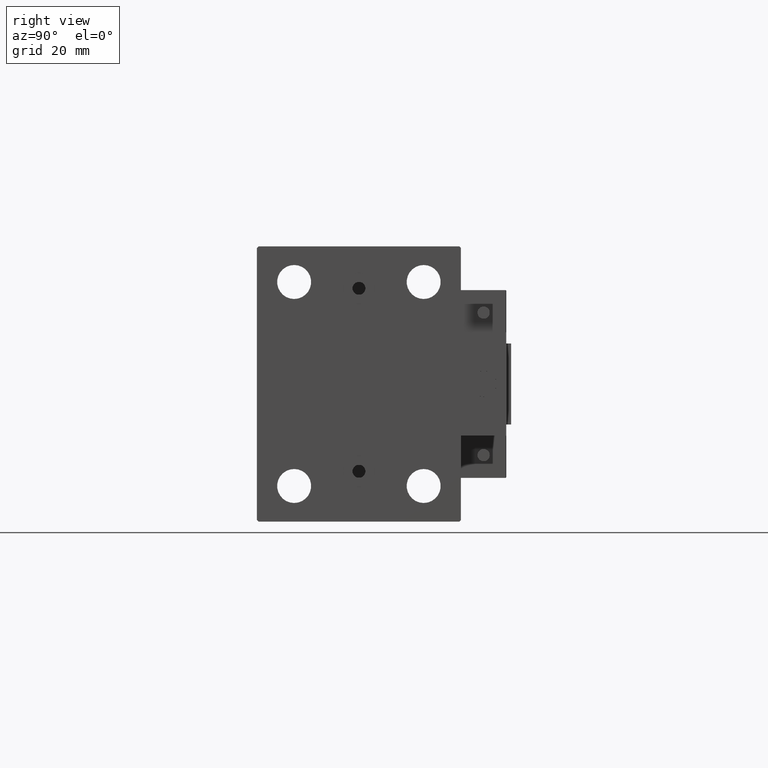
[diagram: clean part render]
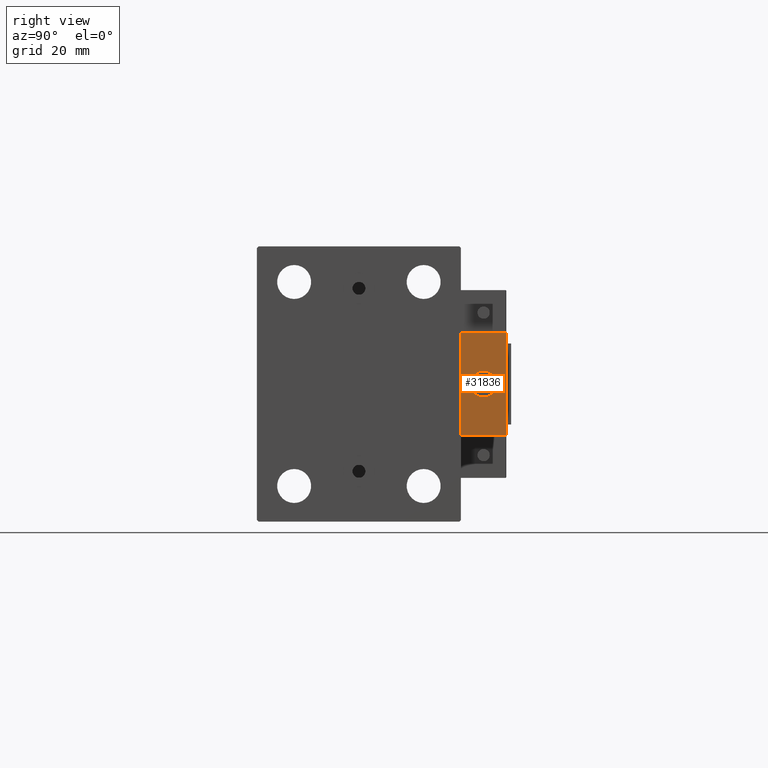
[diagram: same view with one face highlighted and labeled with its STEP entity id]
A machine part, right view. The second image highlights one B-rep face of the part: STEP entity #31836.
In plain terms, the highlighted planar face has unit normal (-1, 0, 0).
Its self-contained STEP definition (entity closure, byte-faithful):
#289 = DIRECTION ( 'NONE',  ( 0.000000000000000000, -1.000000000000000000, 0.000000000000000000 ) ) ;
#4225 = LINE ( 'NONE', #20201, #32465 ) ;
#4637 = VECTOR ( 'NONE', #7589, 1000.000000000000000 ) ;
#4799 = VERTEX_POINT ( 'NONE', #51675 ) ;
#5035 = EDGE_CURVE ( 'NONE', #42391, #19609, #43972, .T. ) ;
#7589 = DIRECTION ( 'NONE',  ( 0.000000000000000000, 0.000000000000000000, -1.000000000000000000 ) ) ;
#8999 = CARTESIAN_POINT ( 'NONE',  ( 10.00000000000000000, -7.000000000000000000, -16.00000000000000711 ) ) ;
#11181 = CARTESIAN_POINT ( 'NONE',  ( 10.00000000000000000, 0.000000000000000000, 0.000000000000000000 ) ) ;
#11688 = DIRECTION ( 'NONE',  ( 0.000000000000000000, 0.000000000000000000, 1.000000000000000000 ) ) ;
#11758 = DIRECTION ( 'NONE',  ( 0.000000000000000000, 0.000000000000000000, -1.000000000000000000 ) ) ;
#13804 = VECTOR ( 'NONE', #11758, 1000.000000000000000 ) ;
#14608 = DIRECTION ( 'NONE',  ( -0.000000000000000000, 0.000000000000000000, 1.000000000000000000 ) ) ;
#14804 = CARTESIAN_POINT ( 'NONE',  ( 10.00000000000000000, 0.000000000000000000, 4.000000000000000000 ) ) ;
#15472 = CIRCLE ( 'NONE', #44720, 4.000000000000000000 ) ;
#18411 = CIRCLE ( 'NONE', #40103, 4.000000000000000000 ) ;
#18662 = LINE ( 'NONE', #27723, #4637 ) ;
#19362 = LINE ( 'NONE', #30868, #13804 ) ;
#19407 = EDGE_CURVE ( 'NONE', #47444, #4799, #18411, .T. ) ;
#19609 = VERTEX_POINT ( 'NONE', #25277 ) ;
#20201 = CARTESIAN_POINT ( 'NONE',  ( 10.00000000000000000, 7.000000000000000000, -16.00000000000000711 ) ) ;
#20394 = ORIENTED_EDGE ( 'NONE', *, *, #24837, .F. ) ;
#22468 = FACE_OUTER_BOUND ( 'NONE', #42316, .T. ) ;
#23463 = DIRECTION ( 'NONE',  ( -1.000000000000000000, 0.000000000000000000, 0.000000000000000000 ) ) ;
#24378 = AXIS2_PLACEMENT_3D ( 'NONE', #38398, #30564, #14608 ) ;
#24837 = EDGE_CURVE ( 'NONE', #26494, #51300, #4225, .T. ) ;
#25277 = CARTESIAN_POINT ( 'NONE',  ( 10.00000000000000000, -7.000000000000000000, 15.99999999999999289 ) ) ;
#26152 = EDGE_LOOP ( 'NONE', ( #46841, #48015 ) ) ;
#26421 = VECTOR ( 'NONE', #48938, 1000.000000000000000 ) ;
#26494 = VERTEX_POINT ( 'NONE', #29428 ) ;
#26644 = FACE_BOUND ( 'NONE', #26152, .T. ) ;
#26875 = ORIENTED_EDGE ( 'NONE', *, *, #44670, .T. ) ;
#27723 = CARTESIAN_POINT ( 'NONE',  ( 10.00000000000000000, -7.000000000000000000, 15.99999999999999289 ) ) ;
#29162 = ORIENTED_EDGE ( 'NONE', *, *, #43572, .F. ) ;
#29428 = CARTESIAN_POINT ( 'NONE',  ( 10.00000000000000000, 7.000000000000000000, -16.00000000000000711 ) ) ;
#30564 = DIRECTION ( 'NONE',  ( -1.000000000000000000, 0.000000000000000000, -0.000000000000000000 ) ) ;
#30868 = CARTESIAN_POINT ( 'NONE',  ( 10.00000000000000000, 7.000000000000000000, 15.99999999999999289 ) ) ;
#31836 = ADVANCED_FACE ( 'NONE', ( #26644, #22468 ), #50701, .F. ) ;
#32465 = VECTOR ( 'NONE', #289, 1000.000000000000000 ) ;
#35491 = CARTESIAN_POINT ( 'NONE',  ( 10.00000000000000000, 0.000000000000000000, 0.000000000000000000 ) ) ;
#37155 = CARTESIAN_POINT ( 'NONE',  ( 10.00000000000000000, 7.000000000000000000, 15.99999999999999289 ) ) ;
#38340 = ORIENTED_EDGE ( 'NONE', *, *, #5035, .T. ) ;
#38398 = CARTESIAN_POINT ( 'NONE',  ( 10.00000000000000000, 0.000000000000000000, 0.000000000000000000 ) ) ;
#40103 = AXIS2_PLACEMENT_3D ( 'NONE', #35491, #51439, #11688 ) ;
#42316 = EDGE_LOOP ( 'NONE', ( #26875, #20394, #29162, #38340 ) ) ;
#42391 = VERTEX_POINT ( 'NONE', #43197 ) ;
#43197 = CARTESIAN_POINT ( 'NONE',  ( 10.00000000000000000, 7.000000000000000000, 15.99999999999999289 ) ) ;
#43572 = EDGE_CURVE ( 'NONE', #42391, #26494, #19362, .T. ) ;
#43822 = EDGE_CURVE ( 'NONE', #4799, #47444, #15472, .T. ) ;
#43972 = LINE ( 'NONE', #37155, #26421 ) ;
#44670 = EDGE_CURVE ( 'NONE', #19609, #51300, #18662, .T. ) ;
#44720 = AXIS2_PLACEMENT_3D ( 'NONE', #11181, #23463, #51188 ) ;
#46841 = ORIENTED_EDGE ( 'NONE', *, *, #19407, .T. ) ;
#47444 = VERTEX_POINT ( 'NONE', #14804 ) ;
#48015 = ORIENTED_EDGE ( 'NONE', *, *, #43822, .T. ) ;
#48938 = DIRECTION ( 'NONE',  ( 0.000000000000000000, -1.000000000000000000, 0.000000000000000000 ) ) ;
#50701 = PLANE ( 'NONE',  #24378 ) ;
#51188 = DIRECTION ( 'NONE',  ( 0.000000000000000000, 0.000000000000000000, 1.000000000000000000 ) ) ;
#51300 = VERTEX_POINT ( 'NONE', #8999 ) ;
#51439 = DIRECTION ( 'NONE',  ( -1.000000000000000000, 0.000000000000000000, 0.000000000000000000 ) ) ;
#51675 = CARTESIAN_POINT ( 'NONE',  ( 10.00000000000000000, 4.898587196589412829E-16, -4.000000000000000000 ) ) ;